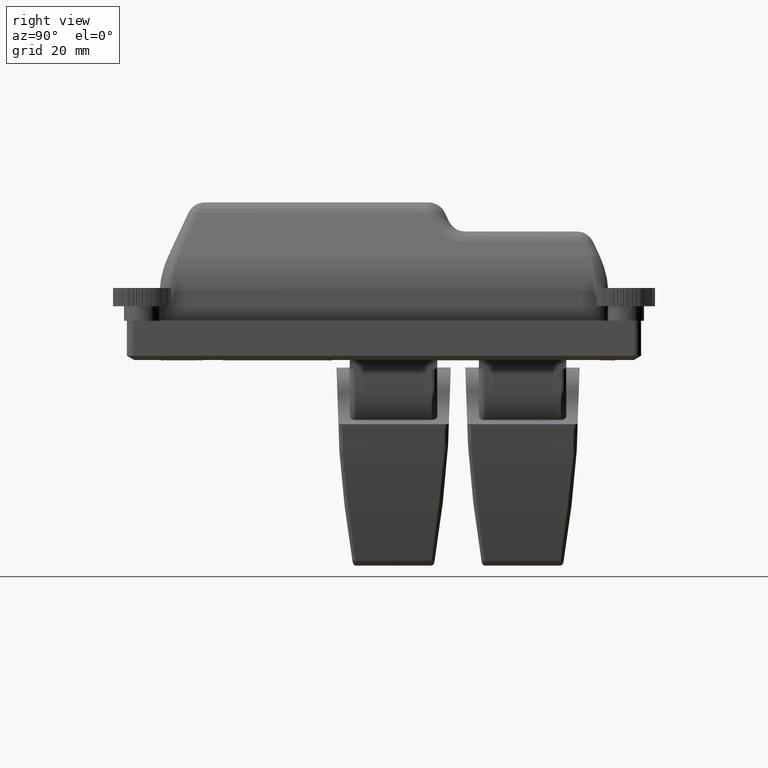
[diagram: clean part render]
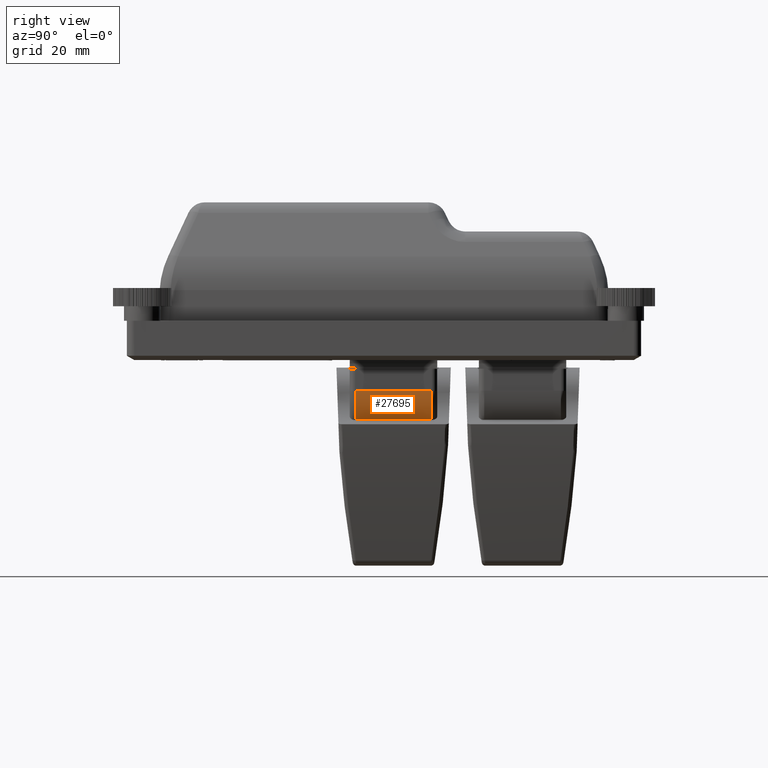
[diagram: same view with one face highlighted and labeled with its STEP entity id]
A machine part, right view. The second image highlights one B-rep face of the part: STEP entity #27695.
In plain terms, the highlighted face is a freeform B-spline surface patch.
Its self-contained STEP definition (entity closure, byte-faithful):
#124=B_SPLINE_SURFACE_WITH_KNOTS('',3,1,((#47606,#47607),(#47608,#47609),
(#47610,#47611),(#47612,#47613),(#47614,#47615),(#47616,#47617),(#47618,
#47619),(#47620,#47621)),.UNSPECIFIED.,.F.,.F.,.F.,(4,2,2,4),(2,2),(-0.786418551097062,
-0.511518839738215,-0.236619128379368,0.),(-1.2,1.2),.UNSPECIFIED.);
#1778=FACE_OUTER_BOUND('',#3262,.T.);
#3262=EDGE_LOOP('',(#22334,#22335,#22336,#22337));
#6513=LINE('',#47250,#8397);
#6530=LINE('',#47602,#8414);
#8397=VECTOR('',#37502,21.);
#8414=VECTOR('',#37563,21.);
#9401=B_SPLINE_CURVE_WITH_KNOTS('',3,(#47332,#47333,#47334,#47335,#47336,
#47337,#47338),.UNSPECIFIED.,.F.,.F.,(4,2,1,4),(-0.747026617097559,-0.52287255392876,
-0.261539776164262,1.11022302462516E-16),.UNSPECIFIED.);
#9410=B_SPLINE_CURVE_WITH_KNOTS('',3,(#47594,#47595,#47596,#47597,#47598,
#47599,#47600),.UNSPECIFIED.,.F.,.F.,(4,1,2,4),(-0.746383936800198,-0.485243715430306,
-0.223834025982069,1.48588531322224E-15),.UNSPECIFIED.);
#11598=VERTEX_POINT('',#47203);
#11601=VERTEX_POINT('',#47249);
#11603=VERTEX_POINT('',#47331);
#11626=VERTEX_POINT('',#47574);
#15292=EDGE_CURVE('',#11598,#11601,#6513,.T.);
#15298=EDGE_CURVE('',#11601,#11603,#9401,.T.);
#15332=EDGE_CURVE('',#11626,#11598,#9410,.T.);
#15333=EDGE_CURVE('',#11626,#11603,#6530,.T.);
#22334=ORIENTED_EDGE('',*,*,#15298,.F.);
#22335=ORIENTED_EDGE('',*,*,#15292,.F.);
#22336=ORIENTED_EDGE('',*,*,#15332,.F.);
#22337=ORIENTED_EDGE('',*,*,#15333,.T.);
#27695=ADVANCED_FACE('',(#1778),#124,.F.);
#37502=DIRECTION('',(2.36280453750021E-16,-1.,-3.61467961505829E-16));
#37563=DIRECTION('',(2.36280453750021E-16,-1.,-3.61467961505829E-16));
#47203=CARTESIAN_POINT('',(12.5738862690745,13.1067671659569,-65.1375850000012));
#47249=CARTESIAN_POINT('',(12.5738862690745,-7.89323283404306,-65.1375850000012));
#47250=CARTESIAN_POINT('',(12.5738862690745,2.60676716595694,-65.1375850000012));
#47331=CARTESIAN_POINT('',(14.8497816871019,-7.89323283404307,-57.2375850000009));
#47332=CARTESIAN_POINT('Ctrl Pts',(12.5738862690745,-7.89323283404306,-65.1375850000012));
#47333=CARTESIAN_POINT('Ctrl Pts',(13.0181562705643,-7.89323283404306,-64.4304880990532));
#47334=CARTESIAN_POINT('Ctrl Pts',(13.3994892004582,-7.89323283404306,-63.6926919873859));
#47335=CARTESIAN_POINT('Ctrl Pts',(14.0916112436612,-7.89323283404306,-62.0256883965948));
#47336=CARTESIAN_POINT('Ctrl Pts',(14.6584866779947,-7.89323283404306,-60.1496650687661));
#47337=CARTESIAN_POINT('Ctrl Pts',(14.8497661756803,-7.89323283404307,-58.2145775968291));
#47338=CARTESIAN_POINT('Ctrl Pts',(14.8497816871019,-7.89323283404307,-57.2375850000009));
#47574=CARTESIAN_POINT('',(14.8497816871019,13.1067671659569,-57.237585000001));
#47594=CARTESIAN_POINT('Ctrl Pts',(14.8497816871019,13.1067671659569,-57.2375850000009));
#47595=CARTESIAN_POINT('Ctrl Pts',(14.8497661993771,13.1067671659569,-58.2130850434527));
#47596=CARTESIAN_POINT('Ctrl Pts',(14.6568618590246,13.1067671659569,-60.1564145340883));
#47597=CARTESIAN_POINT('Ctrl Pts',(14.0935165745468,13.1067671659569,-62.0196424993482));
#47598=CARTESIAN_POINT('Ctrl Pts',(13.3984733023048,13.1067671659569,-63.6953285273507));
#47599=CARTESIAN_POINT('Ctrl Pts',(13.0175219616451,13.1067671659569,-64.4314976605124));
#47600=CARTESIAN_POINT('Ctrl Pts',(12.5738862690745,13.1067671659569,-65.1375850000012));
#47602=CARTESIAN_POINT('',(14.8497816871019,2.60676716595694,-57.2375850000009));
#47606=CARTESIAN_POINT('Ctrl Pts',(14.8497816871019,14.6067671659569,-57.2375850000009));
#47607=CARTESIAN_POINT('Ctrl Pts',(14.8497816871019,-9.39323283404307,-57.2375850000009));
#47608=CARTESIAN_POINT('Ctrl Pts',(14.8497671386981,14.6067671659569,-58.1539215621679));
#47609=CARTESIAN_POINT('Ctrl Pts',(14.8497671386981,-9.39323283404307,-58.1539215621679));
#47610=CARTESIAN_POINT('Ctrl Pts',(14.7593432180265,14.6067671659569,-59.1546783263614));
#47611=CARTESIAN_POINT('Ctrl Pts',(14.7593432180265,-9.39323283404307,-59.1546783263614));
#47612=CARTESIAN_POINT('Ctrl Pts',(14.369456603502,14.6067671659569,-61.1146080060665));
#47613=CARTESIAN_POINT('Ctrl Pts',(14.369456603502,-9.39323283404307,-61.1146080060665));
#47614=CARTESIAN_POINT('Ctrl Pts',(14.069993909737,14.6067671659569,-62.0737809215956));
#47615=CARTESIAN_POINT('Ctrl Pts',(14.069993909737,-9.39323283404307,-62.0737809215956));
#47616=CARTESIAN_POINT('Ctrl Pts',(13.4174666130026,14.6067671659569,-63.6490503811123));
#47617=CARTESIAN_POINT('Ctrl Pts',(13.4174666130026,-9.39323283404306,-63.6490503811123));
#47618=CARTESIAN_POINT('Ctrl Pts',(13.0307300806617,14.6067671659569,-64.4104757144151));
#47619=CARTESIAN_POINT('Ctrl Pts',(13.0307300806617,-9.39323283404306,-64.4104757144151));
#47620=CARTESIAN_POINT('Ctrl Pts',(12.5738862690745,14.6067671659569,-65.1375850000012));
#47621=CARTESIAN_POINT('Ctrl Pts',(12.5738862690745,-9.39323283404306,-65.1375850000012));